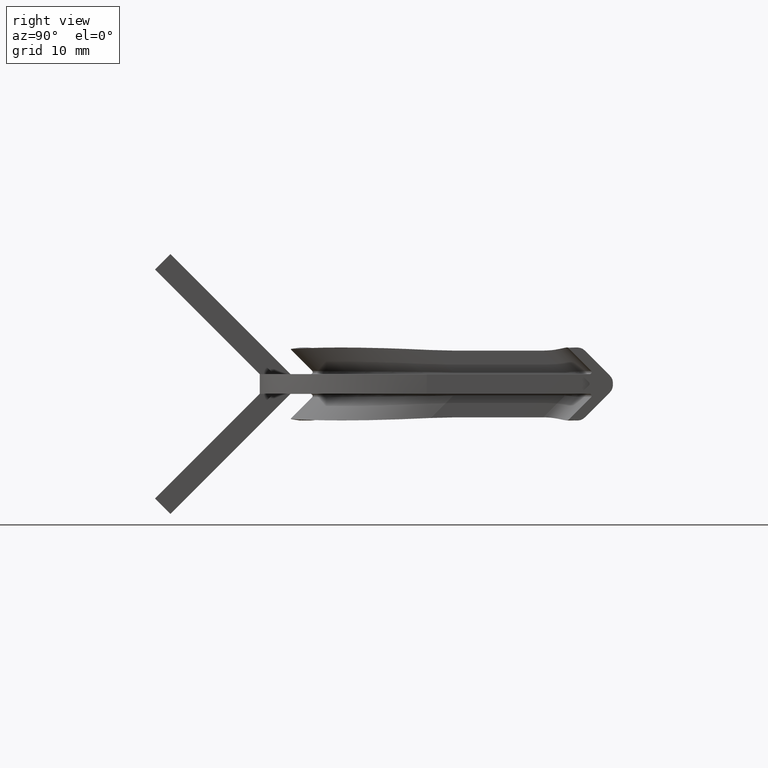
[diagram: clean part render]
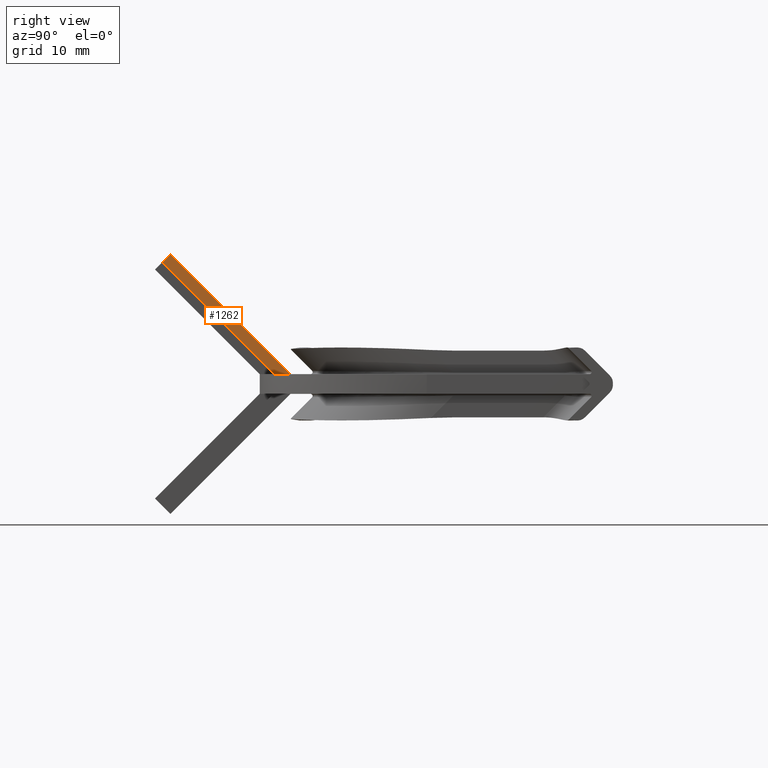
[diagram: same view with one face highlighted and labeled with its STEP entity id]
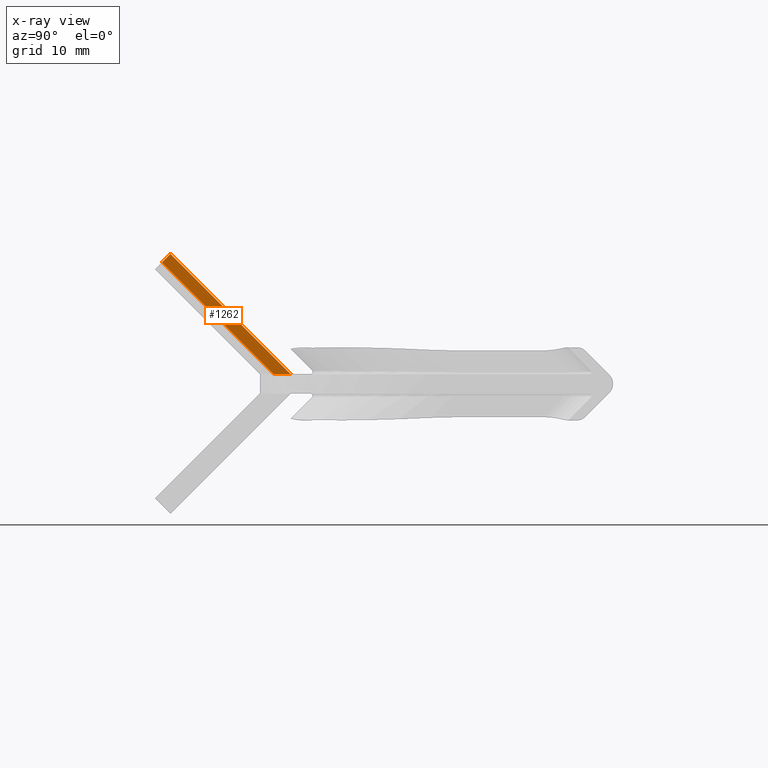
[diagram: x-ray of the same camera — body ghosted, the highlighted face saturated]
A machine part, right view. The second image highlights one B-rep face of the part: STEP entity #1262.
The next image is the same camera in x-ray: the body ghosted, the highlighted face saturated — about 0% of this face is hidden behind the body in this view.
In plain terms, the highlighted planar face has unit normal (1, 0, -0).
Its self-contained STEP definition (entity closure, byte-faithful):
#195=FACE_OUTER_BOUND('',#262,.T.);
#262=EDGE_LOOP('',(#1113,#1114,#1115,#1116));
#322=LINE('',#1843,#437);
#361=LINE('',#2501,#476);
#372=LINE('',#2524,#487);
#374=LINE('',#2527,#489);
#437=VECTOR('',#1503,10.);
#476=VECTOR('',#1646,10.);
#487=VECTOR('',#1669,10.);
#489=VECTOR('',#1673,10.);
#591=VERTEX_POINT('',#1840);
#592=VERTEX_POINT('',#1842);
#633=VERTEX_POINT('',#2499);
#639=VERTEX_POINT('',#2523);
#712=EDGE_CURVE('',#591,#592,#322,.T.);
#793=EDGE_CURVE('',#633,#591,#361,.T.);
#804=EDGE_CURVE('',#639,#592,#372,.T.);
#806=EDGE_CURVE('',#639,#633,#374,.T.);
#1113=ORIENTED_EDGE('',*,*,#793,.F.);
#1114=ORIENTED_EDGE('',*,*,#806,.F.);
#1115=ORIENTED_EDGE('',*,*,#804,.T.);
#1116=ORIENTED_EDGE('',*,*,#712,.F.);
#1196=PLANE('',#1384);
#1262=ADVANCED_FACE('',(#195),#1196,.T.);
#1384=AXIS2_PLACEMENT_3D('',#2526,#1671,#1672);
#1503=DIRECTION('',(5.27481360847835E-18,-1.,0.));
#1646=DIRECTION('',(-5.0756085797697E-17,0.707106781186548,-0.707106781186548));
#1669=DIRECTION('',(-5.0756085797697E-17,0.707106781186548,-0.707106781186548));
#1671=DIRECTION('center_axis',(1.,5.27481360847835E-18,-6.65051312995972E-17));
#1672=DIRECTION('ref_axis',(-6.65051312995972E-17,0.,-1.));
#1673=DIRECTION('',(4.32963728535968E-17,0.707106781186548,0.707106781186547));
#1840=CARTESIAN_POINT('',(44.5,3.11126983722097,0.999999999999941));
#1842=CARTESIAN_POINT('',(44.5,1.41421356237337,0.999999999999945));
#1843=CARTESIAN_POINT('',(44.5,0.829832295280057,1.));
#2499=CARTESIAN_POINT('',(44.5,-9.05096679918771,13.1622366364086));
#2501=CARTESIAN_POINT('',(44.5,-9.05096679918771,13.1622366364086));
#2523=CARTESIAN_POINT('',(44.5,-9.89949493661151,12.3137084989848));
#2524=CARTESIAN_POINT('',(44.5,-9.89949493661151,12.3137084989848));
#2526=CARTESIAN_POINT('Origin',(44.5,-9.89949493661151,12.3137084989848));
#2527=CARTESIAN_POINT('',(44.5,-9.89949493661151,12.3137084989848));